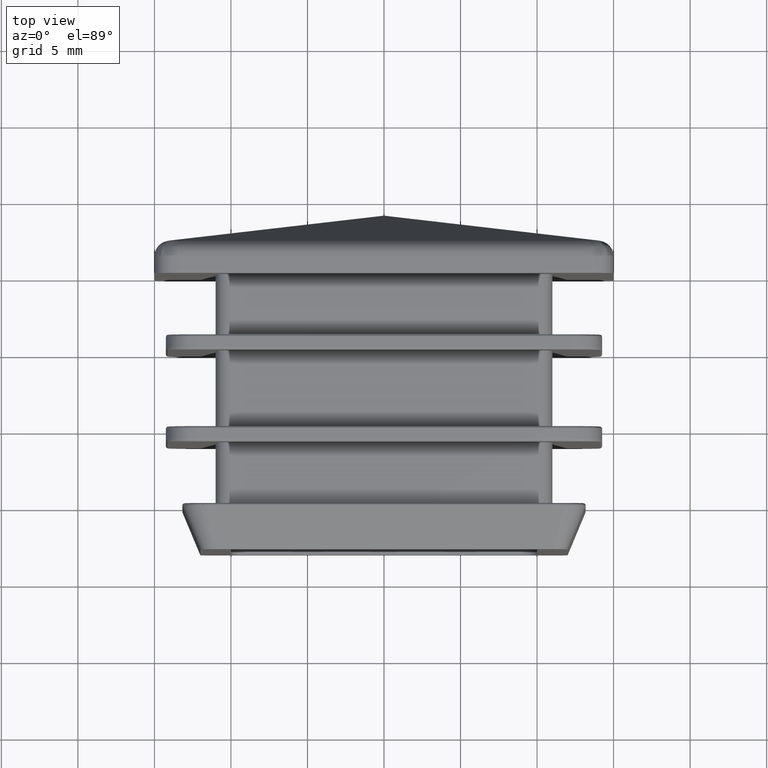
[diagram: clean part render]
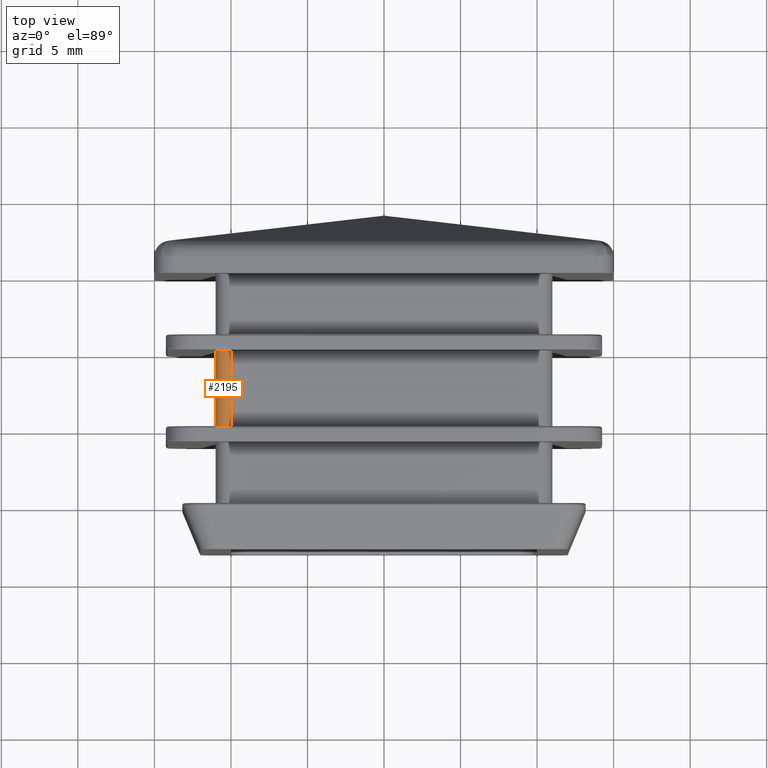
[diagram: same view with one face highlighted and labeled with its STEP entity id]
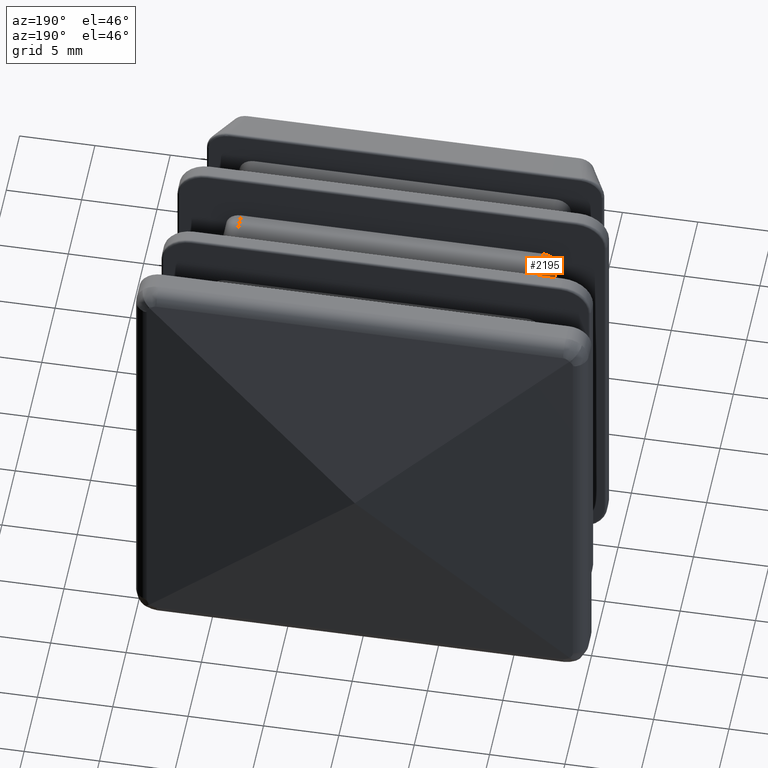
[diagram: same view with one face highlighted and labeled with its STEP entity id]
A machine part, top view. The second image highlights one B-rep face of the part: STEP entity #2195.
A second angle (auxiliary view) of the same face is appended — the face is thin or edge-on in the first view.
In plain terms, the highlighted cylindrical surface (edge-blend (fillet) strip) has radius 1 mm, axis along (0, -1, 0).
Its self-contained STEP definition (entity closure, byte-faithful):
#116=CYLINDRICAL_SURFACE('',#2453,1.);
#274=LINE('',#4400,#438);
#276=LINE('',#4404,#440);
#438=VECTOR('',#3102,5.);
#440=VECTOR('',#3108,5.);
#591=FACE_OUTER_BOUND('',#733,.T.);
#733=EDGE_LOOP('',(#1958,#1959,#1960,#1961));
#831=CIRCLE('',#2367,1.);
#855=CIRCLE('',#2404,1.);
#1011=VERTEX_POINT('',#4191);
#1013=VERTEX_POINT('',#4194);
#1044=VERTEX_POINT('',#4281);
#1045=VERTEX_POINT('',#4283);
#1280=EDGE_CURVE('',#1013,#1011,#831,.T.);
#1324=EDGE_CURVE('',#1045,#1044,#855,.T.);
#1378=EDGE_CURVE('',#1044,#1013,#274,.T.);
#1380=EDGE_CURVE('',#1011,#1045,#276,.T.);
#1958=ORIENTED_EDGE('',*,*,#1280,.T.);
#1959=ORIENTED_EDGE('',*,*,#1380,.T.);
#1960=ORIENTED_EDGE('',*,*,#1324,.T.);
#1961=ORIENTED_EDGE('',*,*,#1378,.T.);
#2195=ADVANCED_FACE('',(#591),#116,.T.);
#2367=AXIS2_PLACEMENT_3D('',#4195,#2880,#2881);
#2404=AXIS2_PLACEMENT_3D('',#4284,#2974,#2975);
#2453=AXIS2_PLACEMENT_3D('',#4403,#3106,#3107);
#2880=DIRECTION('center_axis',(0.,1.,0.));
#2881=DIRECTION('ref_axis',(-0.707106781186548,0.,0.707106781186548));
#2974=DIRECTION('center_axis',(0.,-1.,0.));
#2975=DIRECTION('ref_axis',(-0.707106781186548,0.,0.707106781186548));
#3102=DIRECTION('',(0.,-1.,0.));
#3106=DIRECTION('center_axis',(0.,-1.,0.));
#3107=DIRECTION('ref_axis',(-0.707106781186548,0.,0.707106781186548));
#3108=DIRECTION('',(0.,1.,0.));
#4191=CARTESIAN_POINT('',(-10.,-10.,11.));
#4194=CARTESIAN_POINT('',(-11.,-10.,10.));
#4195=CARTESIAN_POINT('Origin',(-10.,-10.,10.));
#4281=CARTESIAN_POINT('',(-11.,-5.,10.));
#4283=CARTESIAN_POINT('',(-10.,-5.,11.));
#4284=CARTESIAN_POINT('Origin',(-10.,-5.,10.));
#4400=CARTESIAN_POINT('',(-11.,0.,10.));
#4403=CARTESIAN_POINT('Origin',(-10.,0.,10.));
#4404=CARTESIAN_POINT('',(-10.,0.,11.));